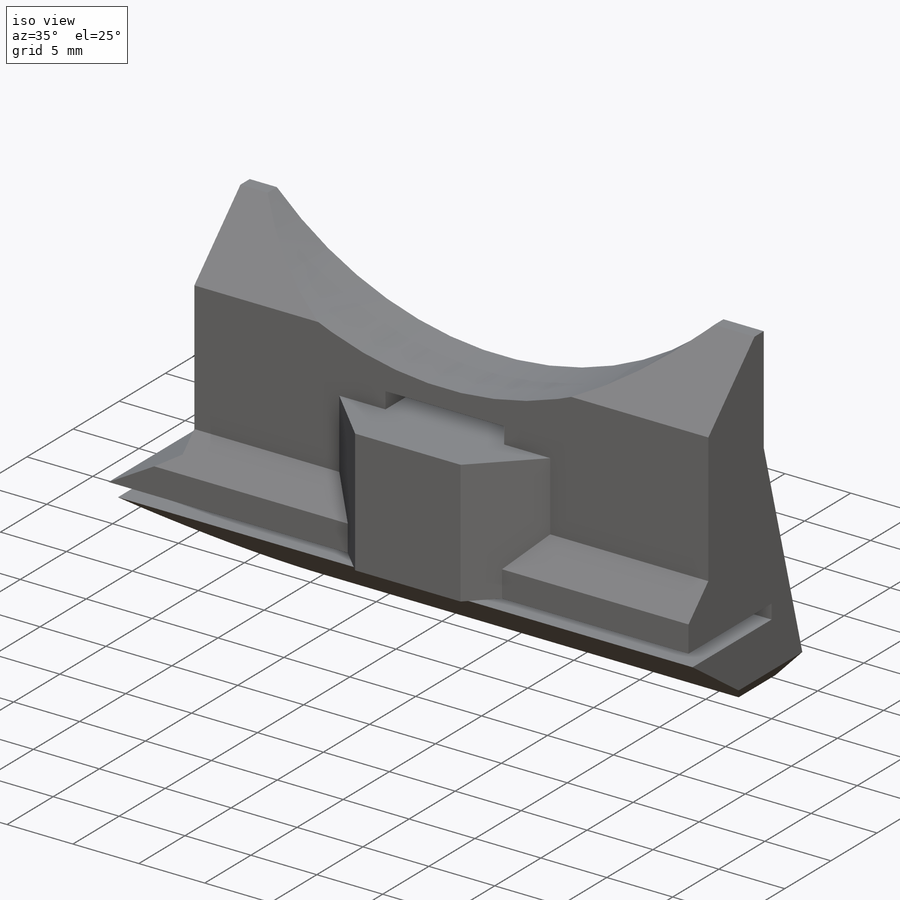
[diagram: iso view]
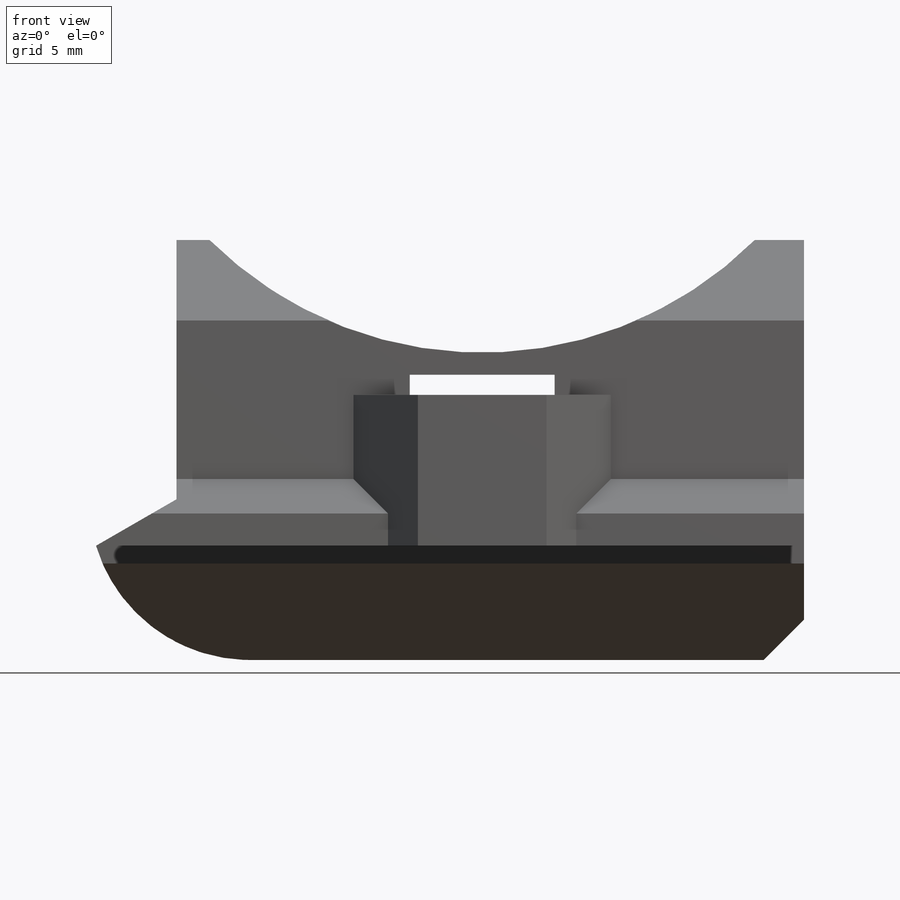
[diagram: front view]
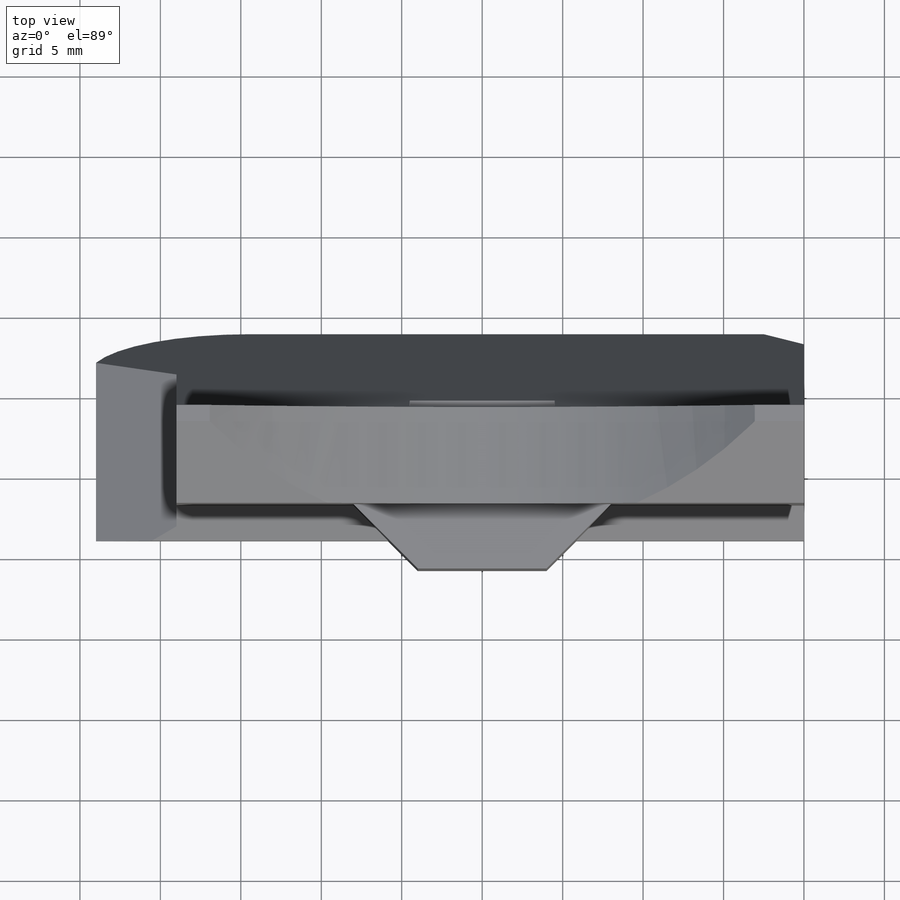
[diagram: top view]
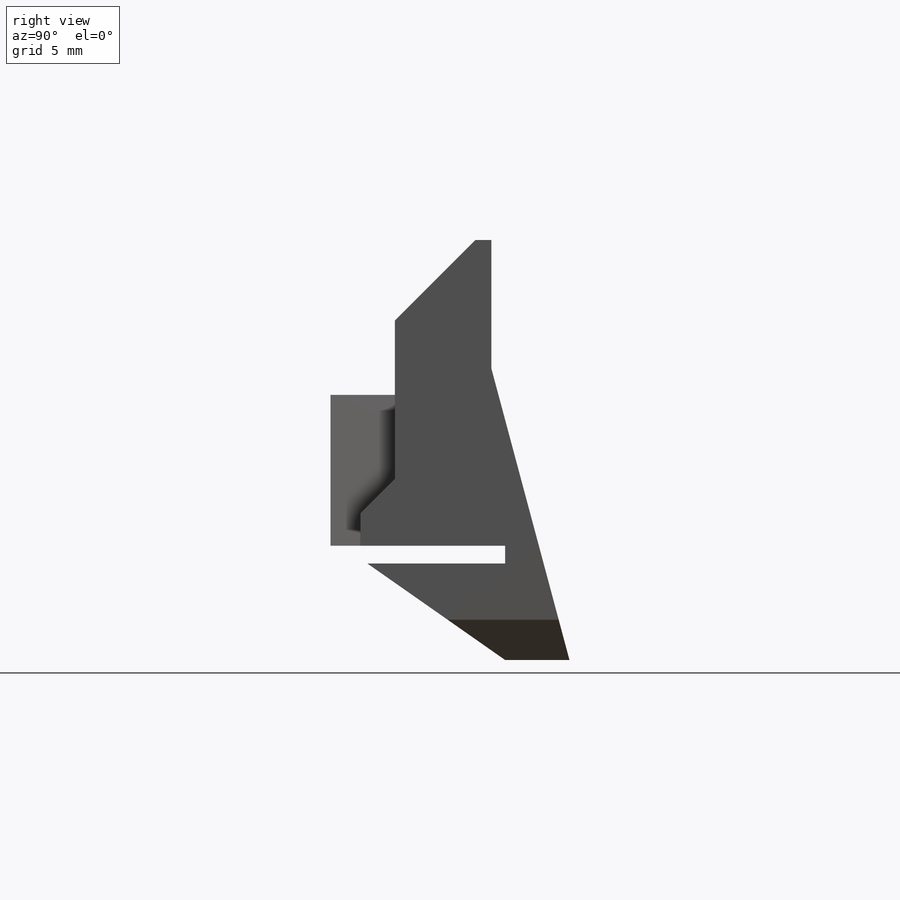
[diagram: right view]
SOLIDWORKS PART (.sldprt)
format: sldprt  version: not decoded by parser v0  size: 363,008 bytes
history: native  units: mm
features: sketch x11, extrude x6, cut_extrude x5, plane x5, chamfer x4, material x1, fillet x1 (+11 scaffold rows collapsed)
feature tree (44):
  scaffold x11  (default folders/planes/origin — collapsed)
  material  "ABS"
  sketch  "Sketch1"  dims[c1.D1=6.0mm c1.D2=~15.936399mm c2.D2=35.0deg c2.D3=4.0mm c2.D4=2.0mm c3.D4=105.0deg c3.D5=1.1mm c3.D6=10.0mm c3.D7=9.0mm c3.D8=4.0mm c3.D9=~3.630159mm c4.D9=45.0deg c4.D10=2.0mm c4.D6=11.0mm c4.D11=~5.98935mm c4.D8=6.0mm]
  extrude  "Boss-Extrude1"  Depth=40mm
  sketch  "Sketch3"  dims[D1=3.5mm]
  cut_extrude  "Cut-Extrude1"  [1 undecoded]
  sketch  "Sketch4"  dims[D1=5.75mm]
  cut_extrude  "Cut-Extrude2"  Depth=3mm
  chamfer  "Chamfer2"  Distance=1mm Angle=45deg
  sketch  "Sketch5"  dims[c1.D1=~14.984374mm c2.D1=85.0deg c2.D2=7.5mm c2.D3=12.0mm c2.D4=0.0mm]
  extrude  "Boss-Extrude3"  [1 undecoded]
  sketch  "Sketch6"  dims[D1=15.0mm D2=11.0mm]
  cut_extrude  "Cut-Extrude3"  [1 undecoded]
  chamfer  "Chamfer3"  Distance=1mm Angle=45deg
  sketch  "Sketch7"  dims[c1.D1=24.0mm c1.D2=8.0mm c1.D3=~1.288401mm c2.D3=90.0deg c3.D3=11.0mm c3.D1=8.0mm c4.D3=12.0mm]
  extrude  "Boss-Extrude4"  [1 undecoded]
  plane  "Plane1"
  plane  "Plane2"  Offset=2.5mm
  plane  "Plane5"  Offset=2.5mm
  plane  "Plane3"
  plane  "Plane4"  Offset=1mm
  chamfer  "Chamfer4"  Distance=5mm Angle=45deg
  sketch  "Sketch15"  dims[D1=0.0mm]
  extrude  "Boss-Extrude5"  Depth=4mm
  sketch  "Sketch16"  dims[c1.D1=~5.831762mm c2.D1=30.0deg c2.D2=5.0mm]
  cut_extrude  "Cut-Extrude4"  [1 undecoded]
  fillet  "Fillet1"  Radius=10mm
  chamfer  "Chamfer5"  Distance=2.5mm Angle=45deg
  sketch  "Sketch17"  dims[D1=9.0mm D2=1.25mm D3=2.0mm]
  cut_extrude  "Cut-Extrude5"  [1 undecoded]
  sketch  "Sketch18"  dims[D1=8.0mm]
  extrude  "Boss-Extrude6"  Depth=4mm
  sketch  "Sketch19"
  extrude  "Boss-Extrude8"  [1 undecoded]
decode coverage: 19 of 27 modeling features carry decoded parameters
note: ~ marks probable driven/reference dimensions
note: 7 parameter values undecoded
summary: no parameter record found for 7 features
note: suppression state not decoded; provenance and decode notes live in map.json
